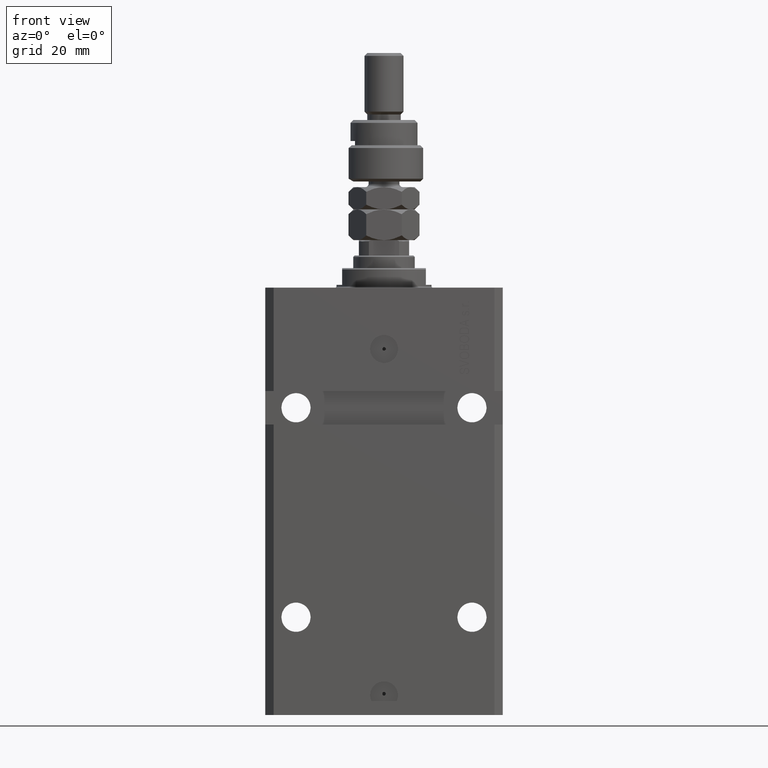
[diagram: clean part render]
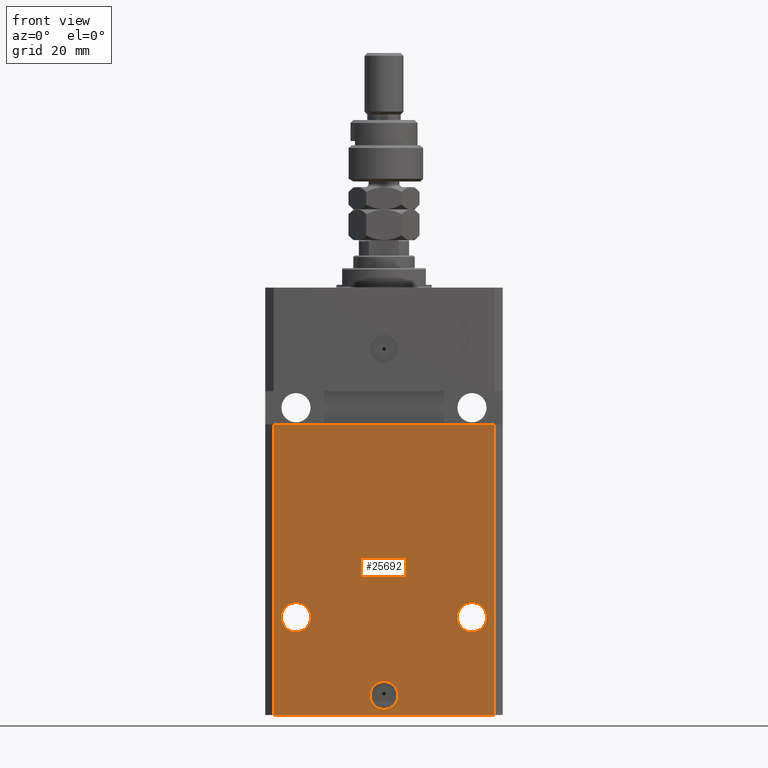
[diagram: same view with one face highlighted and labeled with its STEP entity id]
A machine part, front view. The second image highlights one B-rep face of the part: STEP entity #25692.
In plain terms, the highlighted planar face has unit normal (0, -1, 0).
Its self-contained STEP definition (entity closure, byte-faithful):
#198 = DIRECTION ( 'NONE',  ( 1.176083712526788232E-16, -1.000000000000000000, 0.000000000000000000 ) ) ;
#1389 = ORIENTED_EDGE ( 'NONE', *, *, #41126, .F. ) ;
#1515 = CARTESIAN_POINT ( 'NONE',  ( -39.50000000000000711, -31.50000000000000000, -153.0000000000000000 ) ) ;
#1966 = VERTEX_POINT ( 'NONE', #1515 ) ;
#2000 = CARTESIAN_POINT ( 'NONE',  ( -39.50000000000000711, -31.50000000000000000, -153.0000000000000000 ) ) ;
#3551 = FACE_BOUND ( 'NONE', #13414, .T. ) ;
#3614 = ORIENTED_EDGE ( 'NONE', *, *, #38705, .F. ) ;
#3708 = EDGE_CURVE ( 'NONE', #13145, #20094, #11731, .T. ) ;
#3915 = AXIS2_PLACEMENT_3D ( 'NONE', #18358, #11155, #46948 ) ;
#4411 = DIRECTION ( 'NONE',  ( -1.000000000000000000, 0.000000000000000000, 0.000000000000000000 ) ) ;
#5203 = CARTESIAN_POINT ( 'NONE',  ( -39.50000000000000711, -31.50000000000000000, -153.0000000000000000 ) ) ;
#5369 = CARTESIAN_POINT ( 'NONE',  ( 0.000000000000000000, -31.50000000000000000, -146.0000000000000000 ) ) ;
#5976 = DIRECTION ( 'NONE',  ( 1.000000000000000000, 0.000000000000000000, 0.000000000000000000 ) ) ;
#6566 = DIRECTION ( 'NONE',  ( 0.000000000000000000, 0.000000000000000000, 1.000000000000000000 ) ) ;
#6764 = EDGE_CURVE ( 'NONE', #36842, #9118, #33534, .T. ) ;
#6901 = CARTESIAN_POINT ( 'NONE',  ( 26.25000000000001776, -31.49999999999999289, -118.0000000000000000 ) ) ;
#9114 = CARTESIAN_POINT ( 'NONE',  ( -39.50000000000000000, -31.50000000000000711, -48.99999999999999289 ) ) ;
#9118 = VERTEX_POINT ( 'NONE', #15600 ) ;
#10107 = CIRCLE ( 'NONE', #12564, 5.000000000000006217 ) ;
#10424 = LINE ( 'NONE', #41836, #44870 ) ;
#11155 = DIRECTION ( 'NONE',  ( 1.176083712526788232E-16, -1.000000000000000000, 0.000000000000000000 ) ) ;
#11731 = LINE ( 'NONE', #33606, #47374 ) ;
#12269 = PLANE ( 'NONE',  #24863 ) ;
#12564 = AXIS2_PLACEMENT_3D ( 'NONE', #5369, #36796, #30077 ) ;
#12885 = ORIENTED_EDGE ( 'NONE', *, *, #43624, .T. ) ;
#13145 = VERTEX_POINT ( 'NONE', #9114 ) ;
#13240 = DIRECTION ( 'NONE',  ( 1.000000000000000000, 1.632680918566406054E-16, 1.632680918566406054E-16 ) ) ;
#13414 = EDGE_LOOP ( 'NONE', ( #28160, #49041 ) ) ;
#13585 = DIRECTION ( 'NONE',  ( 0.000000000000000000, 0.000000000000000000, 1.000000000000000000 ) ) ;
#15600 = CARTESIAN_POINT ( 'NONE',  ( -36.75000000000001421, -31.50000000000000711, -118.0000000000000000 ) ) ;
#16230 = CARTESIAN_POINT ( 'NONE',  ( 39.50000000000000000, -31.49999999999999289, -48.99999999999997868 ) ) ;
#16638 = CARTESIAN_POINT ( 'NONE',  ( -5.000000000000006217, -31.50000000000000000, -146.0000000000000000 ) ) ;
#18015 = VECTOR ( 'NONE', #5976, 1000.000000000000000 ) ;
#18358 = CARTESIAN_POINT ( 'NONE',  ( -31.50000000000001421, -31.50000000000000711, -118.0000000000000000 ) ) ;
#18387 = CARTESIAN_POINT ( 'NONE',  ( -26.25000000000001776, -31.50000000000000711, -118.0000000000000000 ) ) ;
#18533 = EDGE_LOOP ( 'NONE', ( #25465, #27332, #12885, #44813 ) ) ;
#19090 = CARTESIAN_POINT ( 'NONE',  ( -31.50000000000001421, -31.50000000000000711, -118.0000000000000000 ) ) ;
#19715 = EDGE_LOOP ( 'NONE', ( #1389, #3614 ) ) ;
#19755 = FACE_BOUND ( 'NONE', #21689, .T. ) ;
#19790 = EDGE_CURVE ( 'NONE', #36153, #40498, #45186, .T. ) ;
#20042 = EDGE_CURVE ( 'NONE', #9118, #36842, #22982, .T. ) ;
#20094 = VERTEX_POINT ( 'NONE', #16230 ) ;
#20117 = ORIENTED_EDGE ( 'NONE', *, *, #6764, .F. ) ;
#20290 = AXIS2_PLACEMENT_3D ( 'NONE', #32346, #48044, #24613 ) ;
#20740 = CARTESIAN_POINT ( 'NONE',  ( 36.75000000000001421, -31.49999999999999289, -118.0000000000000000 ) ) ;
#21689 = EDGE_LOOP ( 'NONE', ( #20117, #50199 ) ) ;
#22982 = CIRCLE ( 'NONE', #46031, 5.249999999999997335 ) ;
#23615 = CARTESIAN_POINT ( 'NONE',  ( -39.50000000000000711, -31.50000000000000000, -153.0000000000000000 ) ) ;
#23874 = DIRECTION ( 'NONE',  ( 0.000000000000000000, -1.000000000000000000, 0.000000000000000000 ) ) ;
#24613 = DIRECTION ( 'NONE',  ( 1.000000000000000000, 0.000000000000000000, 0.000000000000000000 ) ) ;
#24863 = AXIS2_PLACEMENT_3D ( 'NONE', #23615, #23874, #27994 ) ;
#25465 = ORIENTED_EDGE ( 'NONE', *, *, #3708, .F. ) ;
#25478 = VERTEX_POINT ( 'NONE', #6901 ) ;
#25692 = ADVANCED_FACE ( 'NONE', ( #3551, #34988, #19755, #31606 ), #12269, .T. ) ;
#26941 = EDGE_CURVE ( 'NONE', #40498, #36153, #10107, .T. ) ;
#27332 = ORIENTED_EDGE ( 'NONE', *, *, #38242, .F. ) ;
#27668 = CIRCLE ( 'NONE', #20290, 5.249999999999997335 ) ;
#27994 = DIRECTION ( 'NONE',  ( 0.000000000000000000, -0.000000000000000000, -1.000000000000000000 ) ) ;
#28160 = ORIENTED_EDGE ( 'NONE', *, *, #19790, .F. ) ;
#30077 = DIRECTION ( 'NONE',  ( 1.000000000000000000, 0.000000000000000000, 0.000000000000000000 ) ) ;
#31606 = FACE_OUTER_BOUND ( 'NONE', #18533, .T. ) ;
#32346 = CARTESIAN_POINT ( 'NONE',  ( 31.50000000000001421, -31.49999999999999289, -118.0000000000000000 ) ) ;
#32783 = CARTESIAN_POINT ( 'NONE',  ( 0.000000000000000000, -31.50000000000000000, -146.0000000000000000 ) ) ;
#33184 = LINE ( 'NONE', #2000, #44132 ) ;
#33534 = CIRCLE ( 'NONE', #3915, 5.249999999999997335 ) ;
#33606 = CARTESIAN_POINT ( 'NONE',  ( -42.50000000000001421, -31.50000000000000711, -48.99999999999999289 ) ) ;
#34988 = FACE_BOUND ( 'NONE', #19715, .T. ) ;
#35839 = VERTEX_POINT ( 'NONE', #20740 ) ;
#36153 = VERTEX_POINT ( 'NONE', #44816 ) ;
#36796 = DIRECTION ( 'NONE',  ( 1.176083712526788232E-16, -1.000000000000000000, 0.000000000000000000 ) ) ;
#36833 = EDGE_CURVE ( 'NONE', #44526, #20094, #10424, .T. ) ;
#36842 = VERTEX_POINT ( 'NONE', #18387 ) ;
#37411 = DIRECTION ( 'NONE',  ( 1.000000000000000000, 0.000000000000000000, 0.000000000000000000 ) ) ;
#38242 = EDGE_CURVE ( 'NONE', #1966, #13145, #33184, .T. ) ;
#38387 = AXIS2_PLACEMENT_3D ( 'NONE', #43209, #198, #38863 ) ;
#38705 = EDGE_CURVE ( 'NONE', #25478, #35839, #27668, .T. ) ;
#38863 = DIRECTION ( 'NONE',  ( 1.000000000000000000, 0.000000000000000000, 0.000000000000000000 ) ) ;
#40498 = VERTEX_POINT ( 'NONE', #16638 ) ;
#41126 = EDGE_CURVE ( 'NONE', #35839, #25478, #44127, .T. ) ;
#41241 = LINE ( 'NONE', #5203, #18015 ) ;
#41836 = CARTESIAN_POINT ( 'NONE',  ( 39.50000000000000711, -31.50000000000000000, -153.0000000000000000 ) ) ;
#42791 = DIRECTION ( 'NONE',  ( 1.176083712526788232E-16, -1.000000000000000000, 0.000000000000000000 ) ) ;
#43209 = CARTESIAN_POINT ( 'NONE',  ( 31.50000000000001421, -31.49999999999999289, -118.0000000000000000 ) ) ;
#43624 = EDGE_CURVE ( 'NONE', #1966, #44526, #41241, .T. ) ;
#44127 = CIRCLE ( 'NONE', #38387, 5.249999999999997335 ) ;
#44132 = VECTOR ( 'NONE', #13585, 1000.000000000000000 ) ;
#44526 = VERTEX_POINT ( 'NONE', #44702 ) ;
#44702 = CARTESIAN_POINT ( 'NONE',  ( 39.50000000000000711, -31.50000000000000000, -153.0000000000000000 ) ) ;
#44813 = ORIENTED_EDGE ( 'NONE', *, *, #36833, .T. ) ;
#44816 = CARTESIAN_POINT ( 'NONE',  ( 5.000000000000006217, -31.50000000000000000, -146.0000000000000000 ) ) ;
#44861 = DIRECTION ( 'NONE',  ( 1.176083712526788232E-16, -1.000000000000000000, 0.000000000000000000 ) ) ;
#44870 = VECTOR ( 'NONE', #6566, 1000.000000000000000 ) ;
#45186 = CIRCLE ( 'NONE', #50962, 5.000000000000006217 ) ;
#46031 = AXIS2_PLACEMENT_3D ( 'NONE', #19090, #42791, #4411 ) ;
#46948 = DIRECTION ( 'NONE',  ( -1.000000000000000000, 0.000000000000000000, 0.000000000000000000 ) ) ;
#47374 = VECTOR ( 'NONE', #13240, 1000.000000000000000 ) ;
#48044 = DIRECTION ( 'NONE',  ( 1.176083712526788232E-16, -1.000000000000000000, 0.000000000000000000 ) ) ;
#49041 = ORIENTED_EDGE ( 'NONE', *, *, #26941, .F. ) ;
#50199 = ORIENTED_EDGE ( 'NONE', *, *, #20042, .F. ) ;
#50962 = AXIS2_PLACEMENT_3D ( 'NONE', #32783, #44861, #37411 ) ;